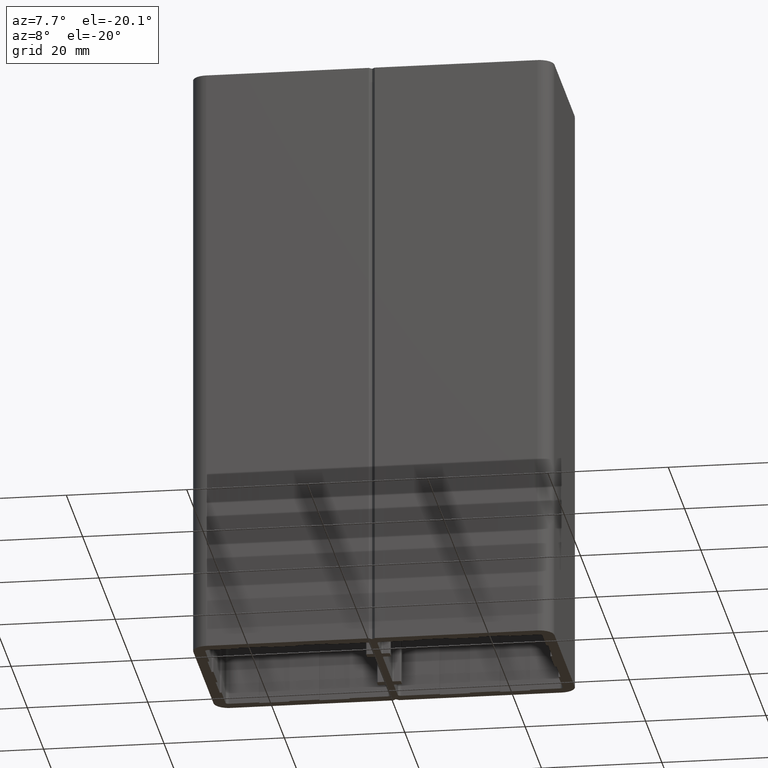
[diagram: clean part render]
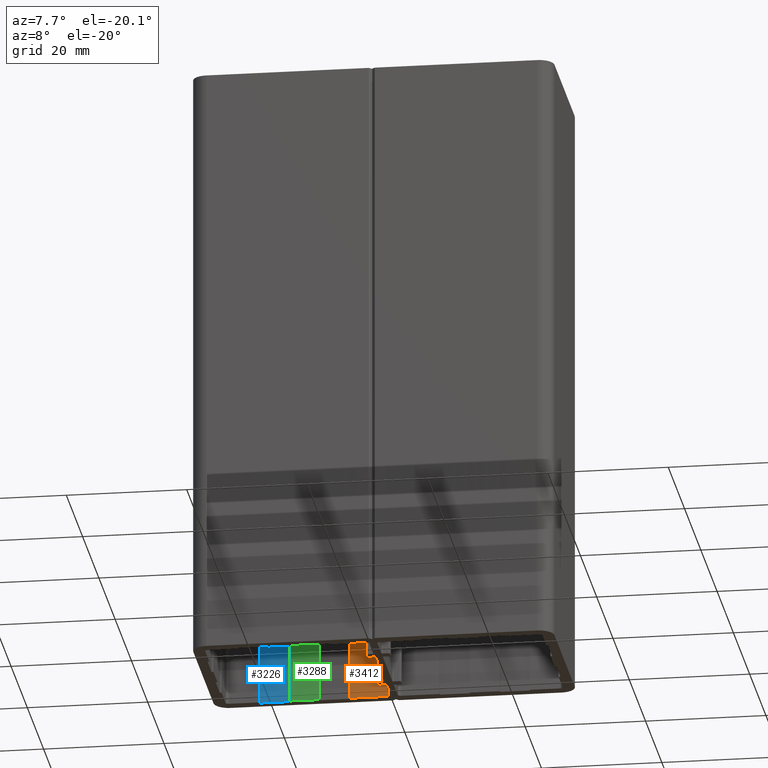
[diagram: same view with three faces highlighted in distinct colors, each labeled with its STEP entity id]
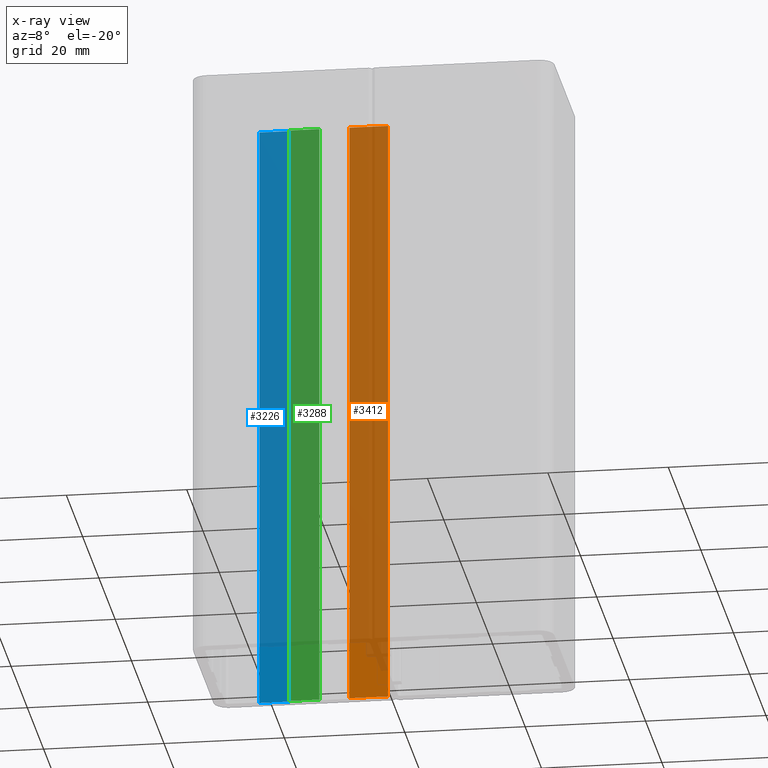
[diagram: x-ray of the same camera — body ghosted, the three highlighted faces saturated]
A machine part, auxiliary view with three faces highlighted in distinct colors.
The next image is the same camera in x-ray (body ghosted, the three faces saturated) — at least one of them is partly hidden behind the body in this view.
Their STEP definitions:

[orange] entity #3412 — the highlighted planar face has unit normal (0, -1, 0).
#3356=CARTESIAN_POINT('',(-7.500000000007390,27.499999999972260,0.0));
#3357=VERTEX_POINT('',#3356);
#3364=CARTESIAN_POINT('',(-7.500000000007390,27.499999999972260,100.0));
#3365=VERTEX_POINT('',#3364);
#3366=CARTESIAN_POINT('',(-7.500000000007390,27.499999999972260,0.0));
#3367=DIRECTION('',(0.0,0.0,1.0));
#3368=VECTOR('',#3367,100.0);
#3369=LINE('',#3366,#3368);
#3370=EDGE_CURVE('',#3357,#3365,#3369,.T.);
#3382=CARTESIAN_POINT('',(-7.500000000007390,27.499999999972260,0.0));
#3383=DIRECTION('',(0.0,-1.0,0.0));
#3384=DIRECTION('',(1.0,0.0,0.0));
#3385=AXIS2_PLACEMENT_3D('',#3382,#3383,#3384);
#3386=PLANE('',#3385);
#3387=CARTESIAN_POINT('',(-1.099999999984448,27.499999999972374,0.0));
#3388=VERTEX_POINT('',#3387);
#3389=CARTESIAN_POINT('',(-7.500000000007390,27.499999999972260,0.0));
#3390=DIRECTION('',(1.0,0.0,0.0));
#3391=VECTOR('',#3390,6.400000000022942);
#3392=LINE('',#3389,#3391);
#3393=EDGE_CURVE('',#3357,#3388,#3392,.T.);
#3394=ORIENTED_EDGE('',*,*,#3393,.T.);
#3395=CARTESIAN_POINT('',(-1.099999999984448,27.499999999972374,100.0));
#3396=VERTEX_POINT('',#3395);
#3397=CARTESIAN_POINT('',(-1.099999999984448,27.499999999972374,0.0));
#3398=DIRECTION('',(0.0,0.0,1.0));
#3399=VECTOR('',#3398,100.0);
#3400=LINE('',#3397,#3399);
#3401=EDGE_CURVE('',#3388,#3396,#3400,.T.);
#3402=ORIENTED_EDGE('',*,*,#3401,.T.);
#3403=CARTESIAN_POINT('',(-7.500000000007390,27.499999999972260,100.0));
#3404=DIRECTION('',(1.0,0.0,0.0));
#3405=VECTOR('',#3404,6.400000000022942);
#3406=LINE('',#3403,#3405);
#3407=EDGE_CURVE('',#3365,#3396,#3406,.T.);
#3408=ORIENTED_EDGE('',*,*,#3407,.F.);
#3409=ORIENTED_EDGE('',*,*,#3370,.F.);
#3410=EDGE_LOOP('',(#3394,#3402,#3408,#3409));
#3411=FACE_OUTER_BOUND('',#3410,.T.);
#3412=ADVANCED_FACE('',(#3411),#3386,.T.);

[blue] entity #3226 — the highlighted planar face has unit normal (0, -1, 0).
#3170=CARTESIAN_POINT('',(-22.499999999992269,27.799999999971988,0.0));
#3171=VERTEX_POINT('',#3170);
#3178=CARTESIAN_POINT('',(-22.499999999992269,27.799999999971988,100.0));
#3179=VERTEX_POINT('',#3178);
#3180=CARTESIAN_POINT('',(-22.499999999992269,27.799999999971988,0.0));
#3181=DIRECTION('',(0.0,0.0,1.0));
#3182=VECTOR('',#3181,100.0);
#3183=LINE('',#3180,#3182);
#3184=EDGE_CURVE('',#3171,#3179,#3183,.T.);
#3196=CARTESIAN_POINT('',(-22.499999999992269,27.799999999971988,0.0));
#3197=DIRECTION('',(0.0,-1.0,0.0));
#3198=DIRECTION('',(1.0,0.0,0.0));
#3199=AXIS2_PLACEMENT_3D('',#3196,#3197,#3198);
#3200=PLANE('',#3199);
#3201=CARTESIAN_POINT('',(-17.499999999997385,27.799999999971988,0.0));
#3202=VERTEX_POINT('',#3201);
#3203=CARTESIAN_POINT('',(-22.499999999992269,27.799999999971988,0.0));
#3204=DIRECTION('',(1.0,0.0,0.0));
#3205=VECTOR('',#3204,4.999999999994884);
#3206=LINE('',#3203,#3205);
#3207=EDGE_CURVE('',#3171,#3202,#3206,.T.);
#3208=ORIENTED_EDGE('',*,*,#3207,.T.);
#3209=CARTESIAN_POINT('',(-17.499999999997385,27.799999999971988,100.0));
#3210=VERTEX_POINT('',#3209);
#3211=CARTESIAN_POINT('',(-17.499999999997385,27.799999999971988,0.0));
#3212=DIRECTION('',(0.0,0.0,1.0));
#3213=VECTOR('',#3212,100.0);
#3214=LINE('',#3211,#3213);
#3215=EDGE_CURVE('',#3202,#3210,#3214,.T.);
#3216=ORIENTED_EDGE('',*,*,#3215,.T.);
#3217=CARTESIAN_POINT('',(-22.499999999992269,27.799999999971988,100.0));
#3218=DIRECTION('',(1.0,0.0,0.0));
#3219=VECTOR('',#3218,4.999999999994884);
#3220=LINE('',#3217,#3219);
#3221=EDGE_CURVE('',#3179,#3210,#3220,.T.);
#3222=ORIENTED_EDGE('',*,*,#3221,.F.);
#3223=ORIENTED_EDGE('',*,*,#3184,.F.);
#3224=EDGE_LOOP('',(#3208,#3216,#3222,#3223));
#3225=FACE_OUTER_BOUND('',#3224,.T.);
#3226=ADVANCED_FACE('',(#3225),#3200,.T.);

[green] entity #3288 — the highlighted planar face has unit normal (0, -1, 0).
#3232=CARTESIAN_POINT('',(-17.499999999997385,27.499999999972260,0.0));
#3233=VERTEX_POINT('',#3232);
#3240=CARTESIAN_POINT('',(-17.499999999997385,27.499999999972260,100.0));
#3241=VERTEX_POINT('',#3240);
#3242=CARTESIAN_POINT('',(-17.499999999997385,27.499999999972260,0.0));
#3243=DIRECTION('',(0.0,0.0,1.0));
#3244=VECTOR('',#3243,100.0);
#3245=LINE('',#3242,#3244);
#3246=EDGE_CURVE('',#3233,#3241,#3245,.T.);
#3258=CARTESIAN_POINT('',(-17.499999999997385,27.499999999972260,0.0));
#3259=DIRECTION('',(0.0,-1.0,0.0));
#3260=DIRECTION('',(1.0,0.0,0.0));
#3261=AXIS2_PLACEMENT_3D('',#3258,#3259,#3260);
#3262=PLANE('',#3261);
#3263=CARTESIAN_POINT('',(-12.500000000002501,27.499999999972260,0.0));
#3264=VERTEX_POINT('',#3263);
#3265=CARTESIAN_POINT('',(-17.499999999997385,27.499999999972260,0.0));
#3266=DIRECTION('',(1.0,0.0,0.0));
#3267=VECTOR('',#3266,4.999999999994884);
#3268=LINE('',#3265,#3267);
#3269=EDGE_CURVE('',#3233,#3264,#3268,.T.);
#3270=ORIENTED_EDGE('',*,*,#3269,.T.);
#3271=CARTESIAN_POINT('',(-12.500000000002501,27.499999999972260,100.0));
#3272=VERTEX_POINT('',#3271);
#3273=CARTESIAN_POINT('',(-12.500000000002501,27.499999999972260,0.0));
#3274=DIRECTION('',(0.0,0.0,1.0));
#3275=VECTOR('',#3274,100.0);
#3276=LINE('',#3273,#3275);
#3277=EDGE_CURVE('',#3264,#3272,#3276,.T.);
#3278=ORIENTED_EDGE('',*,*,#3277,.T.);
#3279=CARTESIAN_POINT('',(-17.499999999997385,27.499999999972260,100.0));
#3280=DIRECTION('',(1.0,0.0,0.0));
#3281=VECTOR('',#3280,4.999999999994884);
#3282=LINE('',#3279,#3281);
#3283=EDGE_CURVE('',#3241,#3272,#3282,.T.);
#3284=ORIENTED_EDGE('',*,*,#3283,.F.);
#3285=ORIENTED_EDGE('',*,*,#3246,.F.);
#3286=EDGE_LOOP('',(#3270,#3278,#3284,#3285));
#3287=FACE_OUTER_BOUND('',#3286,.T.);
#3288=ADVANCED_FACE('',(#3287),#3262,.T.);